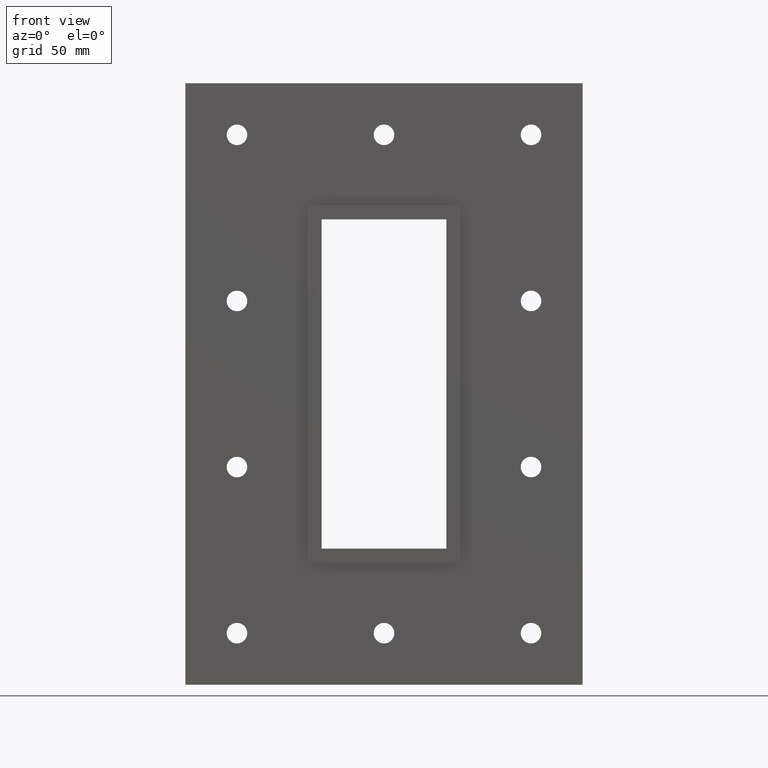
[diagram: clean part render]
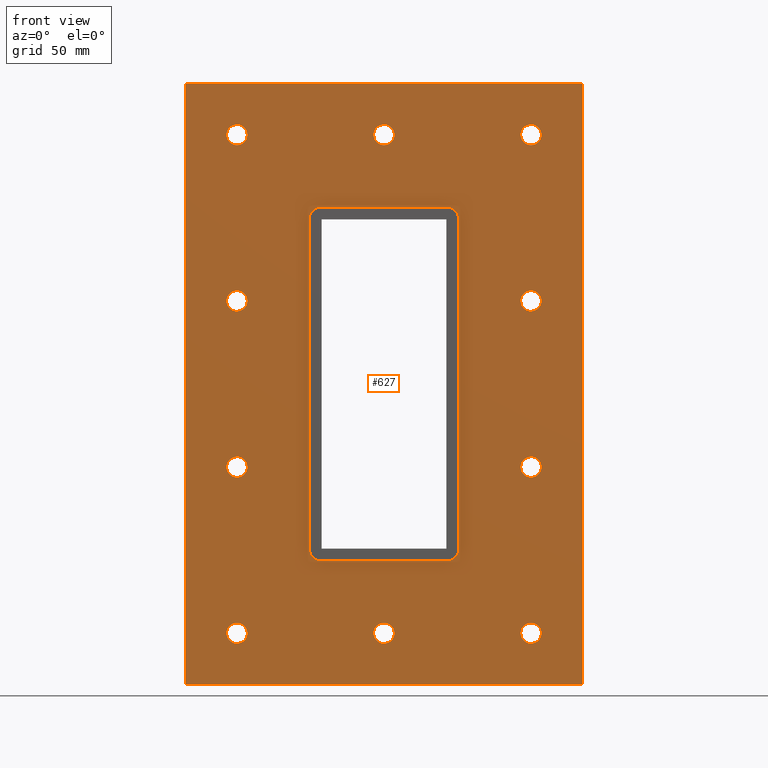
[diagram: same view with one face highlighted and labeled with its STEP entity id]
A machine part, front view. The second image highlights one B-rep face of the part: STEP entity #627.
In plain terms, the highlighted planar face has unit normal (0, 1, 0).
Its self-contained STEP definition (entity closure, byte-faithful):
#84=CARTESIAN_POINT('',(-66.250000000000114,0.0,-120.75));
#85=VERTEX_POINT('',#84);
#86=CARTESIAN_POINT('',(-71.250000000000114,0.0,-120.75));
#87=DIRECTION('',(0.0,1.0,0.0));
#88=DIRECTION('',(1.0,0.0,0.0));
#89=AXIS2_PLACEMENT_3D('',#86,#87,#88);
#90=CIRCLE('',#89,5.0);
#91=EDGE_CURVE('',#85,#85,#90,.T.);
#112=CARTESIAN_POINT('',(76.249999999999886,0.0,-40.249999999999986));
#113=VERTEX_POINT('',#112);
#114=CARTESIAN_POINT('',(71.249999999999886,0.0,-40.249999999999986));
#115=DIRECTION('',(0.0,1.0,0.0));
#116=DIRECTION('',(1.0,0.0,0.0));
#117=AXIS2_PLACEMENT_3D('',#114,#115,#116);
#118=CIRCLE('',#117,5.0);
#119=EDGE_CURVE('',#113,#113,#118,.T.);
#140=CARTESIAN_POINT('',(-66.250000000000114,0.0,-40.249999999999986));
#141=VERTEX_POINT('',#140);
#142=CARTESIAN_POINT('',(-71.250000000000114,0.0,-40.249999999999986));
#143=DIRECTION('',(0.0,1.0,0.0));
#144=DIRECTION('',(1.0,0.0,0.0));
#145=AXIS2_PLACEMENT_3D('',#142,#143,#144);
#146=CIRCLE('',#145,5.0);
#147=EDGE_CURVE('',#141,#141,#146,.T.);
#168=CARTESIAN_POINT('',(76.249999999999886,0.0,40.250000000000021));
#169=VERTEX_POINT('',#168);
#170=CARTESIAN_POINT('',(71.249999999999886,0.0,40.250000000000021));
#171=DIRECTION('',(0.0,1.0,0.0));
#172=DIRECTION('',(1.0,0.0,0.0));
#173=AXIS2_PLACEMENT_3D('',#170,#171,#172);
#174=CIRCLE('',#173,5.0);
#175=EDGE_CURVE('',#169,#169,#174,.T.);
#196=CARTESIAN_POINT('',(-66.250000000000114,0.0,40.250000000000021));
#197=VERTEX_POINT('',#196);
#198=CARTESIAN_POINT('',(-71.250000000000114,0.0,40.250000000000021));
#199=DIRECTION('',(0.0,1.0,0.0));
#200=DIRECTION('',(1.0,0.0,0.0));
#201=AXIS2_PLACEMENT_3D('',#198,#199,#200);
#202=CIRCLE('',#201,5.0);
#203=EDGE_CURVE('',#197,#197,#202,.T.);
#224=CARTESIAN_POINT('',(4.999999999999885,0.0,120.75000000000003));
#225=VERTEX_POINT('',#224);
#226=CARTESIAN_POINT('',(-1.154632E-013,0.0,120.75000000000003));
#227=DIRECTION('',(0.0,1.0,0.0));
#228=DIRECTION('',(1.0,0.0,0.0));
#229=AXIS2_PLACEMENT_3D('',#226,#227,#228);
#230=CIRCLE('',#229,5.0);
#231=EDGE_CURVE('',#225,#225,#230,.T.);
#252=CARTESIAN_POINT('',(4.999999999999885,0.0,-120.75));
#253=VERTEX_POINT('',#252);
#254=CARTESIAN_POINT('',(-1.154632E-013,0.0,-120.75));
#255=DIRECTION('',(0.0,1.0,0.0));
#256=DIRECTION('',(1.0,0.0,0.0));
#257=AXIS2_PLACEMENT_3D('',#254,#255,#256);
#258=CIRCLE('',#257,5.0);
#259=EDGE_CURVE('',#253,#253,#258,.T.);
#280=CARTESIAN_POINT('',(76.249999999999886,0.0,-120.75));
#281=VERTEX_POINT('',#280);
#282=CARTESIAN_POINT('',(71.249999999999886,0.0,-120.75));
#283=DIRECTION('',(0.0,1.0,0.0));
#284=DIRECTION('',(1.0,0.0,0.0));
#285=AXIS2_PLACEMENT_3D('',#282,#283,#284);
#286=CIRCLE('',#285,5.0);
#287=EDGE_CURVE('',#281,#281,#286,.T.);
#308=CARTESIAN_POINT('',(-66.250000000000114,0.0,120.75000000000003));
#309=VERTEX_POINT('',#308);
#310=CARTESIAN_POINT('',(-71.250000000000114,0.0,120.75000000000003));
#311=DIRECTION('',(0.0,1.0,0.0));
#312=DIRECTION('',(1.0,0.0,0.0));
#313=AXIS2_PLACEMENT_3D('',#310,#311,#312);
#314=CIRCLE('',#313,5.0);
#315=EDGE_CURVE('',#309,#309,#314,.T.);
#336=CARTESIAN_POINT('',(76.249999999999886,0.0,120.75000000000003));
#337=VERTEX_POINT('',#336);
#338=CARTESIAN_POINT('',(71.249999999999886,0.0,120.75000000000003));
#339=DIRECTION('',(0.0,1.0,0.0));
#340=DIRECTION('',(1.0,0.0,0.0));
#341=AXIS2_PLACEMENT_3D('',#338,#339,#340);
#342=CIRCLE('',#341,5.0);
#343=EDGE_CURVE('',#337,#337,#342,.T.);
#488=CARTESIAN_POINT('',(0.0,0.0,8.808381E-015));
#489=DIRECTION('',(0.0,1.0,0.0));
#490=DIRECTION('',(0.0,0.0,1.0));
#491=AXIS2_PLACEMENT_3D('',#488,#489,#490);
#492=PLANE('',#491);
#493=CARTESIAN_POINT('',(-96.25,0.0,145.75));
#494=VERTEX_POINT('',#493);
#495=CARTESIAN_POINT('',(96.25,0.0,145.75));
#496=VERTEX_POINT('',#495);
#497=CARTESIAN_POINT('',(-96.25,0.0,145.75));
#498=DIRECTION('',(1.0,0.0,0.0));
#499=VECTOR('',#498,192.5);
#500=LINE('',#497,#499);
#501=EDGE_CURVE('',#494,#496,#500,.T.);
#502=ORIENTED_EDGE('',*,*,#501,.F.);
#503=CARTESIAN_POINT('',(-96.25,0.0,-145.75));
#504=VERTEX_POINT('',#503);
#505=CARTESIAN_POINT('',(-96.25,0.0,-145.75));
#506=DIRECTION('',(0.0,0.0,1.0));
#507=VECTOR('',#506,291.5);
#508=LINE('',#505,#507);
#509=EDGE_CURVE('',#504,#494,#508,.T.);
#510=ORIENTED_EDGE('',*,*,#509,.F.);
#511=CARTESIAN_POINT('',(96.25,0.0,-145.75));
#512=VERTEX_POINT('',#511);
#513=CARTESIAN_POINT('',(96.25,0.0,-145.75));
#514=DIRECTION('',(-1.0,0.0,0.0));
#515=VECTOR('',#514,192.5);
#516=LINE('',#513,#515);
#517=EDGE_CURVE('',#512,#504,#516,.T.);
#518=ORIENTED_EDGE('',*,*,#517,.F.);
#519=CARTESIAN_POINT('',(96.25,0.0,145.75));
#520=DIRECTION('',(0.0,0.0,-1.0));
#521=VECTOR('',#520,291.5);
#522=LINE('',#519,#521);
#523=EDGE_CURVE('',#496,#512,#522,.T.);
#524=ORIENTED_EDGE('',*,*,#523,.F.);
#525=EDGE_LOOP('',(#502,#510,#518,#524));
#526=FACE_OUTER_BOUND('',#525,.T.);
#527=ORIENTED_EDGE('',*,*,#91,.T.);
#528=EDGE_LOOP('',(#527));
#529=FACE_BOUND('',#528,.T.);
#530=ORIENTED_EDGE('',*,*,#119,.T.);
#531=EDGE_LOOP('',(#530));
#532=FACE_BOUND('',#531,.T.);
#533=ORIENTED_EDGE('',*,*,#147,.T.);
#534=EDGE_LOOP('',(#533));
#535=FACE_BOUND('',#534,.T.);
#536=ORIENTED_EDGE('',*,*,#175,.T.);
#537=EDGE_LOOP('',(#536));
#538=FACE_BOUND('',#537,.T.);
#539=ORIENTED_EDGE('',*,*,#203,.T.);
#540=EDGE_LOOP('',(#539));
#541=FACE_BOUND('',#540,.T.);
#542=ORIENTED_EDGE('',*,*,#231,.T.);
#543=EDGE_LOOP('',(#542));
#544=FACE_BOUND('',#543,.T.);
#545=ORIENTED_EDGE('',*,*,#259,.T.);
#546=EDGE_LOOP('',(#545));
#547=FACE_BOUND('',#546,.T.);
#548=ORIENTED_EDGE('',*,*,#287,.T.);
#549=EDGE_LOOP('',(#548));
#550=FACE_BOUND('',#549,.T.);
#551=ORIENTED_EDGE('',*,*,#315,.T.);
#552=EDGE_LOOP('',(#551));
#553=FACE_BOUND('',#552,.T.);
#554=ORIENTED_EDGE('',*,*,#343,.T.);
#555=EDGE_LOOP('',(#554));
#556=FACE_BOUND('',#555,.T.);
#557=CARTESIAN_POINT('',(-36.250000000000007,0.0,-79.750000000000028));
#558=VERTEX_POINT('',#557);
#559=CARTESIAN_POINT('',(-30.250000000000004,0.0,-85.750000000000014));
#560=VERTEX_POINT('',#559);
#561=CARTESIAN_POINT('',(-30.250000000000004,0.0,-79.750000000000028));
#562=DIRECTION('',(0.0,-1.0,0.0));
#563=DIRECTION('',(-0.707106781186547,0.0,-0.707106781186547));
#564=AXIS2_PLACEMENT_3D('',#561,#562,#563);
#565=CIRCLE('',#564,6.0);
#566=EDGE_CURVE('',#558,#560,#565,.T.);
#567=ORIENTED_EDGE('',*,*,#566,.F.);
#568=CARTESIAN_POINT('',(-36.250000000000007,0.0,79.750000000000028));
#569=VERTEX_POINT('',#568);
#570=CARTESIAN_POINT('',(-36.250000000000007,0.0,79.750000000000028));
#571=DIRECTION('',(0.0,0.0,-1.0));
#572=VECTOR('',#571,159.50000000000006);
#573=LINE('',#570,#572);
#574=EDGE_CURVE('',#569,#558,#573,.T.);
#575=ORIENTED_EDGE('',*,*,#574,.F.);
#576=CARTESIAN_POINT('',(-30.250000000000004,0.0,85.750000000000014));
#577=VERTEX_POINT('',#576);
#578=CARTESIAN_POINT('',(-30.250000000000004,0.0,79.750000000000028));
#579=DIRECTION('',(0.0,-1.0,0.0));
#580=DIRECTION('',(-0.707106781186547,0.0,0.707106781186547));
#581=AXIS2_PLACEMENT_3D('',#578,#579,#580);
#582=CIRCLE('',#581,6.0);
#583=EDGE_CURVE('',#577,#569,#582,.T.);
#584=ORIENTED_EDGE('',*,*,#583,.F.);
#585=CARTESIAN_POINT('',(30.250000000000004,0.0,85.750000000000014));
#586=VERTEX_POINT('',#585);
#587=CARTESIAN_POINT('',(30.249999999999996,0.0,85.750000000000014));
#588=DIRECTION('',(-1.0,0.0,0.0));
#589=VECTOR('',#588,60.5);
#590=LINE('',#587,#589);
#591=EDGE_CURVE('',#586,#577,#590,.T.);
#592=ORIENTED_EDGE('',*,*,#591,.F.);
#593=CARTESIAN_POINT('',(36.250000000000007,0.0,79.750000000000014));
#594=VERTEX_POINT('',#593);
#595=CARTESIAN_POINT('',(30.250000000000004,0.0,79.750000000000014));
#596=DIRECTION('',(0.0,-1.0,0.0));
#597=DIRECTION('',(0.707106781186546,0.0,0.707106781186549));
#598=AXIS2_PLACEMENT_3D('',#595,#596,#597);
#599=CIRCLE('',#598,6.000000000000001);
#600=EDGE_CURVE('',#594,#586,#599,.T.);
#601=ORIENTED_EDGE('',*,*,#600,.F.);
#602=CARTESIAN_POINT('',(36.250000000000007,0.0,-79.750000000000028));
#603=VERTEX_POINT('',#602);
#604=CARTESIAN_POINT('',(36.250000000000007,0.0,-79.750000000000028));
#605=DIRECTION('',(0.0,0.0,1.0));
#606=VECTOR('',#605,159.50000000000006);
#607=LINE('',#604,#606);
#608=EDGE_CURVE('',#603,#594,#607,.T.);
#609=ORIENTED_EDGE('',*,*,#608,.F.);
#610=CARTESIAN_POINT('',(30.250000000000004,0.0,-85.750000000000014));
#611=VERTEX_POINT('',#610);
#612=CARTESIAN_POINT('',(30.250000000000004,0.0,-79.750000000000028));
#613=DIRECTION('',(0.0,-1.0,0.0));
#614=DIRECTION('',(0.707106781186547,0.0,-0.707106781186547));
#615=AXIS2_PLACEMENT_3D('',#612,#613,#614);
#616=CIRCLE('',#615,6.0);
#617=EDGE_CURVE('',#611,#603,#616,.T.);
#618=ORIENTED_EDGE('',*,*,#617,.F.);
#619=CARTESIAN_POINT('',(-30.249999999999996,0.0,-85.750000000000014));
#620=DIRECTION('',(1.0,0.0,0.0));
#621=VECTOR('',#620,60.5);
#622=LINE('',#619,#621);
#623=EDGE_CURVE('',#560,#611,#622,.T.);
#624=ORIENTED_EDGE('',*,*,#623,.F.);
#625=EDGE_LOOP('',(#567,#575,#584,#592,#601,#609,#618,#624));
#626=FACE_BOUND('',#625,.T.);
#627=ADVANCED_FACE('',(#526,#529,#532,#535,#538,#541,#544,#547,#550,#553,#556,#626),#492,.F.);